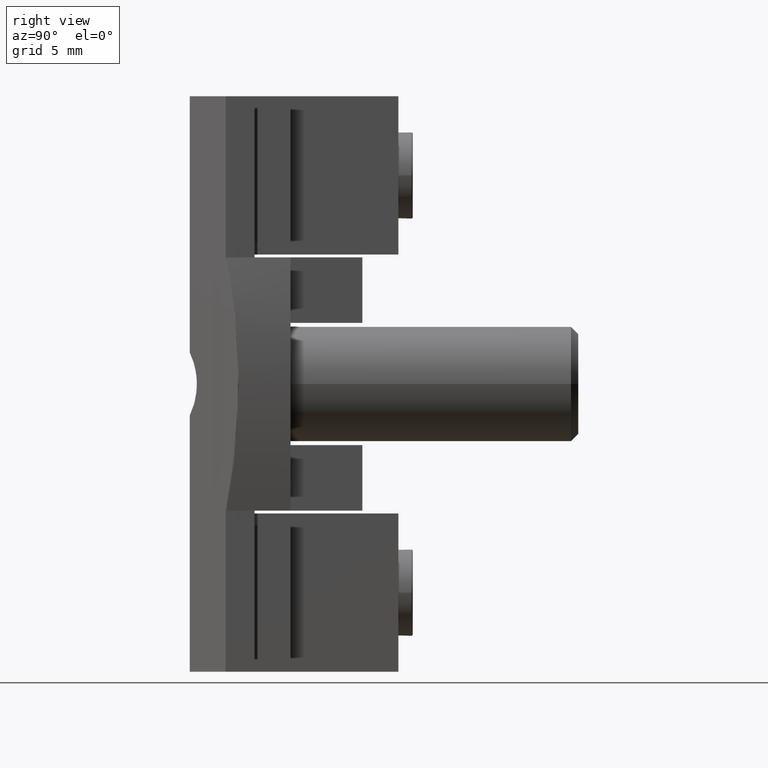
[diagram: clean part render]
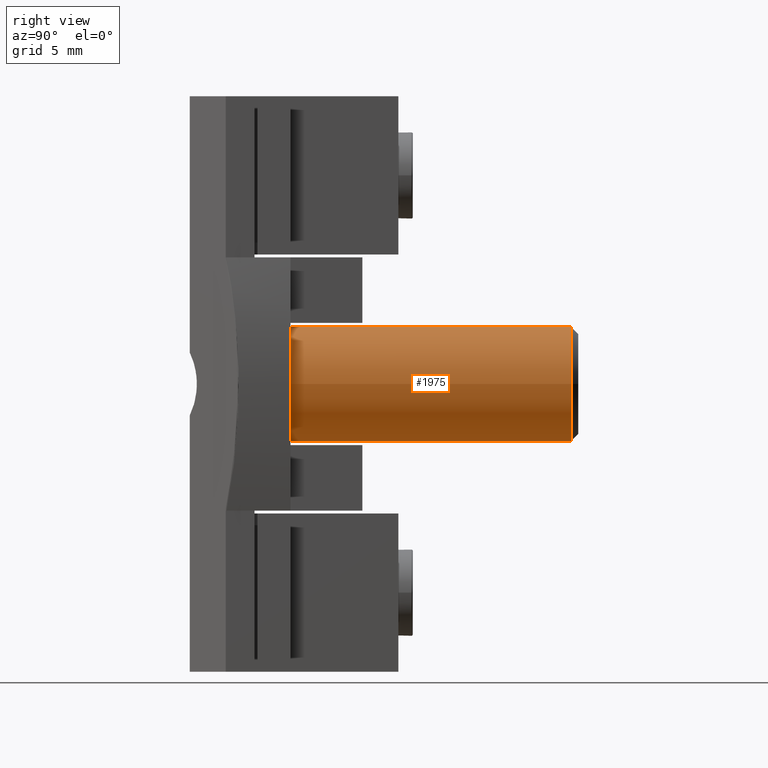
[diagram: same view with one face highlighted and labeled with its STEP entity id]
A machine part, right view. The second image highlights one B-rep face of the part: STEP entity #1975.
In plain terms, the highlighted cylindrical surface (bore or boss wall) has radius 4 mm, axis along (0, 1, 0).
Its self-contained STEP definition (entity closure, byte-faithful):
#68=CIRCLE('',#2159,4.);
#69=CIRCLE('',#2161,4.);
#221=FACE_OUTER_BOUND('',#339,.T.);
#339=EDGE_LOOP('',(#1655,#1656,#1657,#1658));
#537=LINE('',#3238,#756);
#756=VECTOR('',#2591,4.);
#974=VERTEX_POINT('',#3233);
#975=VERTEX_POINT('',#3237);
#1221=EDGE_CURVE('',#974,#974,#68,.T.);
#1222=EDGE_CURVE('',#974,#975,#537,.T.);
#1223=EDGE_CURVE('',#975,#975,#69,.T.);
#1655=ORIENTED_EDGE('',*,*,#1221,.F.);
#1656=ORIENTED_EDGE('',*,*,#1222,.T.);
#1657=ORIENTED_EDGE('',*,*,#1223,.F.);
#1658=ORIENTED_EDGE('',*,*,#1222,.F.);
#1901=CYLINDRICAL_SURFACE('',#2160,4.);
#1975=ADVANCED_FACE('',(#221),#1901,.T.);
#2159=AXIS2_PLACEMENT_3D('',#3235,#2587,#2588);
#2160=AXIS2_PLACEMENT_3D('',#3236,#2589,#2590);
#2161=AXIS2_PLACEMENT_3D('',#3239,#2592,#2593);
#2587=DIRECTION('center_axis',(0.,1.,0.));
#2588=DIRECTION('ref_axis',(-1.,0.,0.));
#2589=DIRECTION('center_axis',(0.,1.,0.));
#2590=DIRECTION('ref_axis',(-1.,0.,0.));
#2591=DIRECTION('',(0.,-1.,0.));
#2592=DIRECTION('center_axis',(0.,-1.,0.));
#2593=DIRECTION('ref_axis',(-1.,0.,0.));
#3233=CARTESIAN_POINT('',(4.,22.,-4.89858719658941E-16));
#3235=CARTESIAN_POINT('Origin',(0.,22.,0.));
#3236=CARTESIAN_POINT('Origin',(0.,2.5,0.));
#3237=CARTESIAN_POINT('',(4.,2.5,-4.89858719658941E-16));
#3238=CARTESIAN_POINT('',(4.,2.5,-4.89858719658941E-16));
#3239=CARTESIAN_POINT('Origin',(0.,2.5,0.));